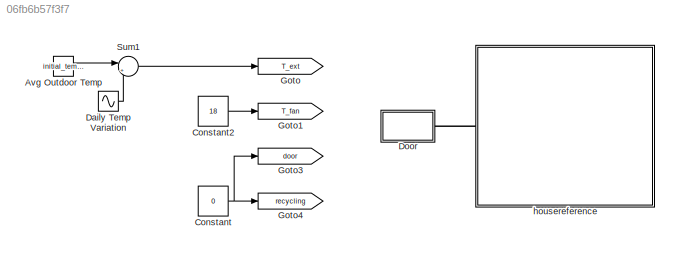
MODEL slx_06fb6b57f3f7
KIND model
CONFIG AbsTol = auto
CONFIG EnableMultiTasking = off
CONFIG FixedStep = auto
CONFIG MaxStep = auto
CONFIG MinStep = auto
CONFIG RelTol = 1e-3
CONFIG SampleTimeConstraint = Unconstrained
CONFIG SolverName = VariableStepAuto
CONFIG StartTime = 0.0
CONFIG StopTime = 2.6e6
WORKSPACE source: mxarray member
WORKSPACE door_area = 1.2
WORKSPACE duct_area = 0.01
WORKSPACE zone_flow_area = 10.9375
BLOCK [Constant] Avg Outdoor Temp
  Value = initial_temperature
BLOCK [Constant] Constant
  Value = 0
BLOCK [Constant] Constant2
  Value = 18
BLOCK [Sin] Daily Temp Variation
  Amplitude = 5
  Frequency = 2*pi/86400
  Ports = [0, 1]
  SampleTime = 0
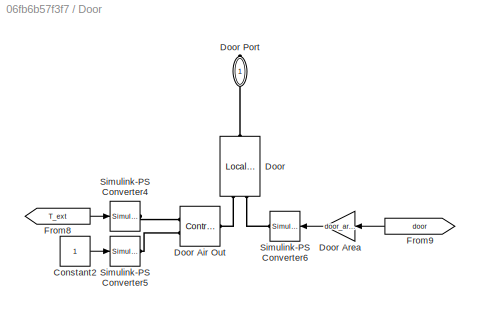
BLOCK [SubSystem] Door
  Ports = [0, 0, 0, 0, 0, 0, 1]
  RequestExecContextInheritance = off
BLOCK [Constant] Door/Constant2
BLOCK [Reference] Door/Door  REF=fl_lib/Gas/Elements/Local Restriction
(G)
  NameLocation = right
  Ports = [0, 0, 0, 0, 0, 2, 1]
  SourceBlock = fl_lib/Gas/Elements/Local Restriction\n(G)
  SourceProductBaseCode = SS
  SourceType = Local Restriction\n(G)
BLOCK [Reference] Door/Door Air Out  REF=fl_lib/Gas/Elements/Controlled Reservoir
(G)
  Ports = [0, 0, 0, 0, 0, 1, 2]
  SourceBlock = fl_lib/Gas/Elements/Controlled Reservoir\n(G)
  SourceProductName = Foundation Library
  SourceType = Controlled Reservoir\n(G)
BLOCK [Gain] Door/Door Area
  Gain = door_area
BLOCK [PMIOPort] Door/Door Port
  NameLocation = left
  Side = Right
BLOCK [From] Door/From8
  GotoTag = T_ext
  TagVisibility = global
BLOCK [From] Door/From9
  GotoTag = door
  NameLocation = top
  TagVisibility = global
BLOCK [Reference] Door/Simulink-PS Converter4  REF=nesl_utility/Simulink-PS
Converter
  Ports = [1, 0, 0, 0, 0, 0, 1]
  SourceBlock = nesl_utility/Simulink-PS\nConverter
  SourceProductBaseCode = PW,SS
  SourceType = Simulink-PS\nConverter
BLOCK [Reference] Door/Simulink-PS Converter5  REF=nesl_utility/Simulink-PS
Converter
  Ports = [1, 0, 0, 0, 0, 0, 1]
  SourceBlock = nesl_utility/Simulink-PS\nConverter
  SourceProductBaseCode = PW,SS
  SourceType = Simulink-PS\nConverter
BLOCK [Reference] Door/Simulink-PS Converter6  REF=nesl_utility/Simulink-PS
Converter
  NameLocation = top
  Ports = [1, 0, 0, 0, 0, 0, 1]
  SourceBlock = nesl_utility/Simulink-PS\nConverter
  SourceProductBaseCode = PW,SS
  SourceType = Simulink-PS\nConverter
BLOCK [Goto] Goto
  GotoTag = T_ext
  TagVisibility = global
BLOCK [Goto] Goto1
  GotoTag = T_fan
  TagVisibility = global
BLOCK [Goto] Goto3
  GotoTag = door
  TagVisibility = global
BLOCK [Goto] Goto4
  GotoTag = recycling
  TagVisibility = global
BLOCK [Sum] Sum1
  InputSameDT = on
  Inputs = |++
  OutDataTypeStr = Inherit: Same as first input
  Ports = [2, 1]
  SaturateOnIntegerOverflow = on
BLOCK [SubSystem] housereference
  Ports = [0, 0, 0, 0, 0, 1]
  ReferencedSubsystem = house0000_subsys
  RequestExecContextInheritance = off
LINE Avg Outdoor Temp:1 -> Sum1:1
LINE Constant2:1 -> Goto1:1
NET Constant:1 -> Goto3:1, Goto4:1
LINE Daily Temp Variation:1 -> Sum1:2
LINE Door/Constant2:1 -> Door/Simulink-PS Converter5:1
LINE Door/Door Area:1 -> Door/Simulink-PS Converter6:1
LINE Door/From8:1 -> Door/Simulink-PS Converter4:1
LINE Door/From9:1 -> Door/Door Area:1
LINE Sum1:1 -> Goto:1
PLINE Door/Door Air Out:LConn1 -- Door/Door:LConn1
PLINE Door/Door Air Out:RConn1 -- Door/Simulink-PS Converter4:RConn1
PLINE Door/Door Air Out:RConn2 -- Door/Simulink-PS Converter5:RConn1
PLINE Door/Door Port:RConn1 -- Door/Door:RConn1
PLINE Door/Door:LConn2 -- Door/Simulink-PS Converter6:RConn1
PLINE Door:RConn1 -- housereference:LConn1
note: NET lines group one-source signal fan-out (src -> all destinations, sorted); 1:1 wires keep LINE
